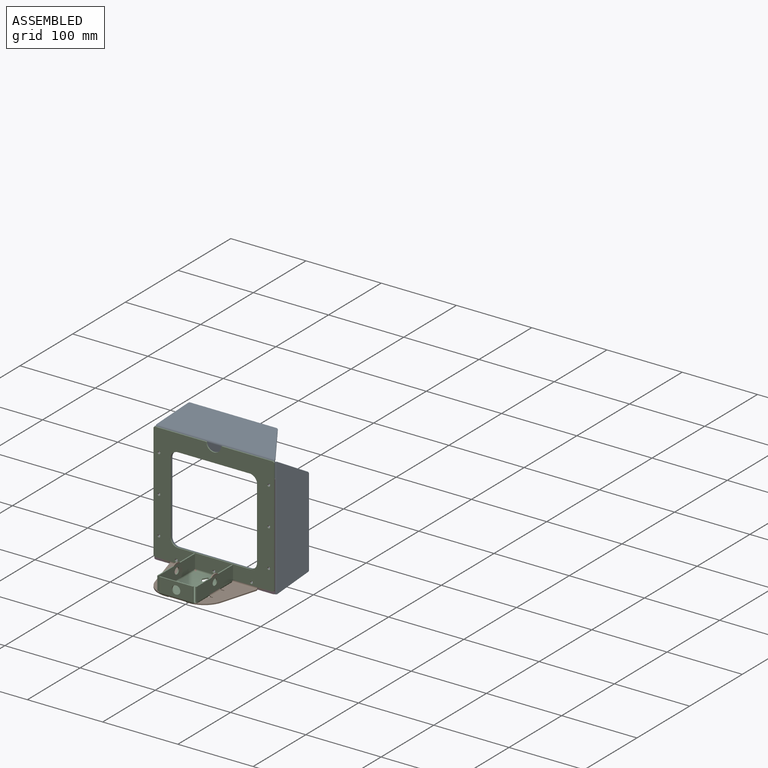
[diagram: assembled view]
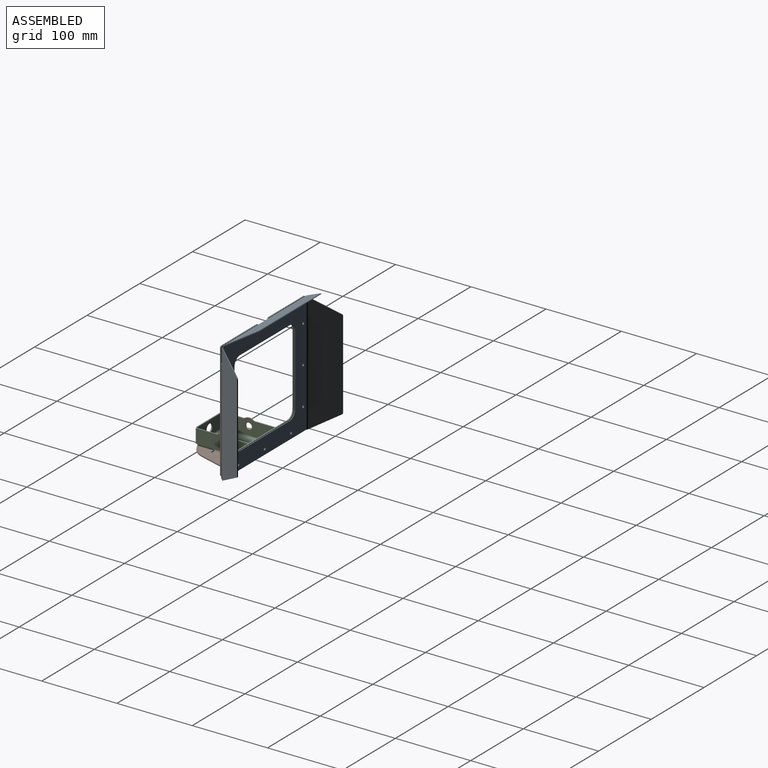
[diagram: assembled view, second angle]
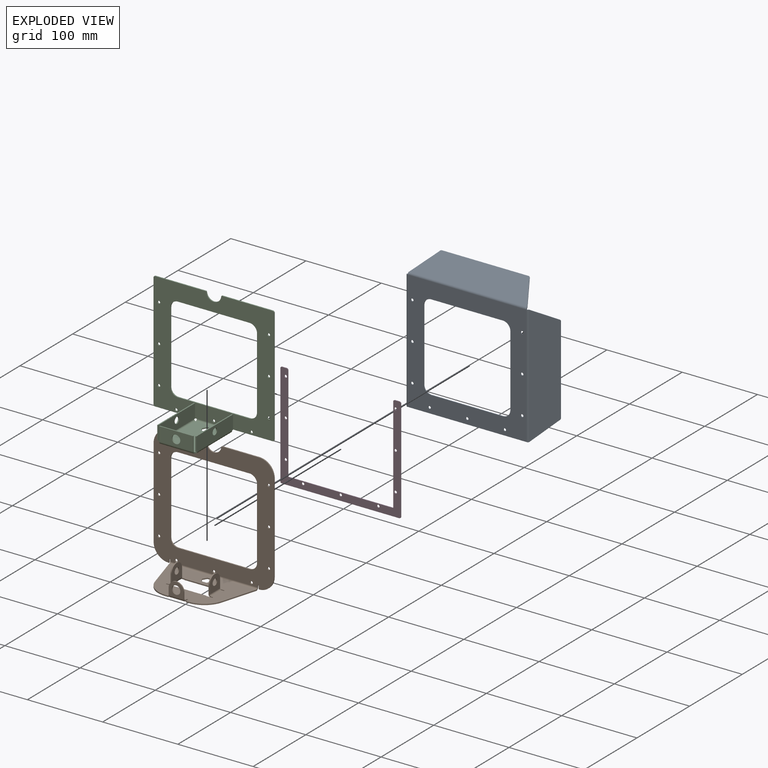
[diagram: exploded view]
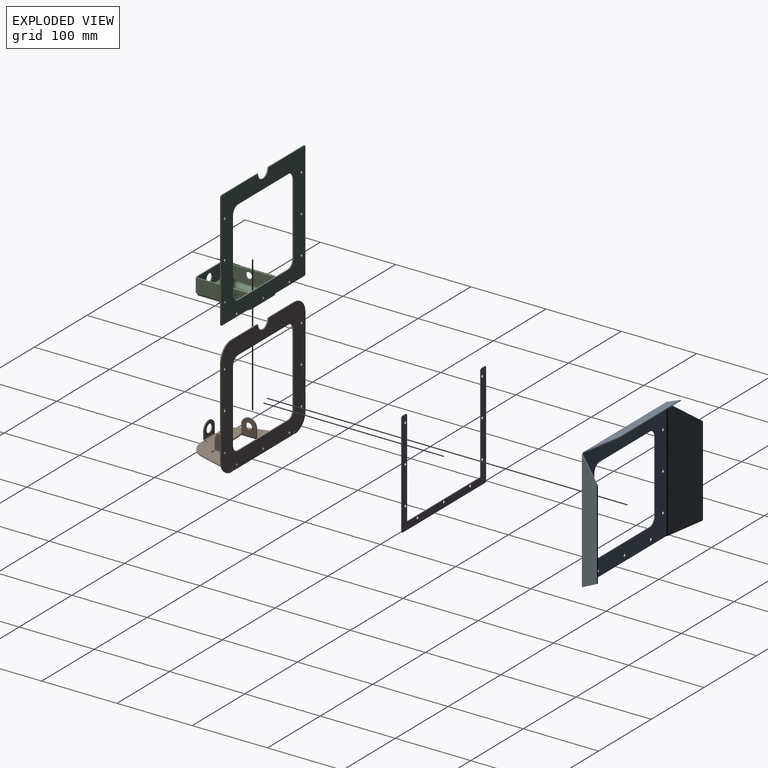
[diagram: exploded view, second angle]
ASSEMBLY  parts=3 mates=2
PART A: 53 faces, bbox 201.2x35.1x180.7 mm
  f0: plane 157.69x1mm, normal (0,0,-1), area 157.7mm2, adj f18,f19,f28,f38
  f1: plane 95x1mm, normal (1,0,0), area 95mm2, adj f2,f17,f18,f19
  f2: cylinder r=10mm len=10mm, axis (0,-1,0), area 15.7mm2, adj f1,f3,f18,f19
  f3: plane 95x1mm, normal (0,0,1), area 95mm2, adj f2,f4,f18,f19
  f4: cylinder r=10mm len=10mm, axis (0,-1,0), area 15.7mm2, adj f3,f5,f18,f19
  f5: plane 95x1mm, normal (-1,0,0), area 95mm2, adj f4,f6,f18,f19
  f6: cylinder r=10mm len=10mm, axis (0,-1,0), area 15.7mm2, adj f5,f7,f18,f19
  f7: plane 95x1mm, normal (0,0,-1), area 95mm2, adj f6,f17,f18,f19
  f8: cylinder r=1.75mm len=3.5mm, axis (0,-1,0), area 11mm2, adj f18,f19
  f9: cylinder r=1.75mm len=3.5mm, axis (0,-1,0), area 11mm2, adj f18,f19
  f10: cylinder r=1.75mm len=3.5mm, axis (0,-1,0), area 11mm2, adj f18,f19
  f11: cylinder r=1.75mm len=3.5mm, axis (0,-1,0), area 11mm2, adj f18,f19
  f12: cylinder r=1.75mm len=3.5mm, axis (0,-1,0), area 11mm2, adj f18,f19
  f13: cylinder r=1.75mm len=3.5mm, axis (0,-1,0), area 11mm2, adj f18,f19
  f14: cylinder r=1.75mm len=3.5mm, axis (0,-1,0), area 11mm2, adj f18,f19
  f15: cylinder r=1.75mm len=3.5mm, axis (0,-1,0), area 11mm2, adj f18,f19
  f16: cylinder r=1.75mm len=3.5mm, axis (0,-1,0), area 11mm2, adj f18,f19
  f17: cylinder r=10mm len=10mm, axis (0,-1,0), area 15.7mm2, adj f1,f7,f18,f19
  f18: plane 158.85x157.69mm, normal (0,1,0), area 11822.7mm2, adj f0,f1,f2,f3,f4,f5,f6,f7
  f19: plane 158.85x157.69mm, normal (0,-1,0), area 11822.7mm2, adj f0,f1,f2,f3,f4,f5,f6,f7
  f20: plane 32.71x19.46mm, normal (-0.23,0.4,-0.89), area 42mm2, adj f23,f24,f25,f28
  f21: plane 116.42x0.87mm, normal (-0.5,0.87,0), area 116.4mm2, adj f23,f24,f25,f26
  f22: plane 32.71x19.46mm, normal (-0.23,0.4,0.89), area 42mm2, adj f23,f24,f26,f27
  f23: plane 158.85x33.14mm, normal (0.87,0.5,0), area 5312.8mm2, adj f20,f21,f22,f25,f26,f30
  f24: plane 158.85x33.14mm, normal (-0.87,-0.5,0), area 5312.8mm2, adj f20,f21,f22,f25,f26,f29
  f25: cylinder r=2mm len=1.77mm, axis (-0.87,-0.5,0), area 2.2mm2, adj f20,f21,f23,f24
  f26: cylinder r=2mm len=1.77mm, axis (-0.87,-0.5,0), area 2.2mm2, adj f21,f22,f23,f24
  f27: plane 2.6x2mm, normal (0,0,1), area 2.6mm2, adj f22,f29,f30,f50
  f28: bspline ~2.6x2mm, area 2.6mm2, adj f0,f20,f29,f30
  f29: cylinder r=3mm len=158.85mm, axis (0,0,1), area 499mm2, adj f19,f24,f27,f28
  f30: cylinder r=2mm len=158.85mm, axis (0,0,1), area 332.7mm2, adj f18,f23,f27,f28
  f31: plane 116.42x0.87mm, normal (0.5,0.87,0), area 116.4mm2, adj f34,f35,f36,f37
  f32: plane 32.71x19.46mm, normal (0.23,0.4,-0.89), area 42mm2, adj f34,f35,f36,f38
  f33: plane 32.71x19.46mm, normal (0.23,0.4,0.89), area 42mm2, adj f34,f35,f37,f39
  f34: plane 158.85x33.14mm, normal (-0.87,0.5,0), area 5312.8mm2, adj f31,f32,f33,f36,f37,f41
  f35: plane 158.85x33.14mm, normal (0.87,-0.5,0), area 5312.8mm2, adj f31,f32,f33,f36,f37,f40
  f36: cylinder r=2mm len=1.77mm, axis (0.87,-0.5,0), area 2.2mm2, adj f31,f32,f34,f35
  f37: cylinder r=2mm len=1.77mm, axis (0.87,-0.5,0), area 2.2mm2, adj f31,f33,f34,f35
  f38: bspline ~2.6x2mm, area 2.6mm2, adj f0,f32,f40,f41
  f39: plane 2.6x2mm, normal (0,0,1), area 2.6mm2, adj f33,f40,f41,f49
  f40: cylinder r=3mm len=158.85mm, axis (0,0,-1), area 499mm2, adj f19,f35,f38,f39
  f41: cylinder r=2mm len=158.85mm, axis (0,0,-1), area 332.7mm2, adj f18,f34,f38,f39
  f42: plane 32.71x19.46mm, normal (-0.89,0.4,0.23), area 42mm2, adj f45,f46,f47,f50
  f43: plane 115.27x0.87mm, normal (0,0.87,0.5), area 115.3mm2, adj f45,f46,f47,f48
  f44: plane 32.71x19.46mm, normal (0.89,0.4,0.23), area 42mm2, adj f45,f46,f48,f49
  f45: plane 157.69x33.14mm, normal (0,0.5,-0.87), area 5268.6mm2, adj f42,f43,f44,f47,f48,f52
  f46: plane 157.69x33.14mm, normal (0,-0.5,0.87), area 5268.6mm2, adj f42,f43,f44,f47,f48,f51
  f47: cylinder r=2mm len=1.77mm, axis (0,-0.5,0.87), area 2.2mm2, adj f42,f43,f45,f46
  f48: cylinder r=2mm len=1.77mm, axis (0,-0.5,0.87), area 2.2mm2, adj f43,f44,f45,f46
  f49: plane 2.6x2mm, normal (1,0,0), area 2.6mm2, adj f39,f44,f51,f52
  f50: plane 2.6x2mm, normal (-1,0,0), area 2.6mm2, adj f27,f42,f51,f52
  f51: cylinder r=3mm len=157.69mm, axis (1,0,0), area 495.4mm2, adj f19,f46,f49,f50
  f52: cylinder r=2mm len=157.69mm, axis (1,0,0), area 330.3mm2, adj f18,f45,f49,f50
PART B: 110 faces, bbox 160x73x160 mm
  f0: plane 3.96x1.5mm, normal (0,-1,0), area 5.9mm2, adj f3,f4,f14,f37
  f1: plane 44.6x1.5mm, normal (0,1,0), area 66.9mm2, adj f3,f4,f26,f30
  f2: plane 44.6x1.5mm, normal (0,-1,0), area 66.9mm2, adj f3,f4,f19,f34
  f3: plane 116x68mm, normal (0,0,-1), area 4909.8mm2, adj f0,f1,f2,f5,f6,f7,f8,f9
  f4: plane 116x68mm, normal (0,0,1), area 4909.8mm2, adj f0,f1,f2,f5,f6,f7,f8,f9
  f5: plane 3.96x1.5mm, normal (0,-1,0), area 5.9mm2, adj f3,f4,f15,f21
  f6: plane 46.47x13.67mm, normal (-0.96,-0.28,0), area 72.6mm2, adj f3,f4,f15,f97
  f7: plane 5.6x3.23mm, normal (0.87,-0.5,0), area 9.7mm2, adj f3,f4,f8,f12
  f8: plane 5.6x3.23mm, normal (0.87,0.5,0), area 9.7mm2, adj f3,f4,f7,f9
  f9: plane 6.47x1.5mm, normal (0,1,0), area 9.7mm2, adj f3,f4,f8,f10
  f10: plane 5.6x3.23mm, normal (-0.87,0.5,0), area 9.7mm2, adj f3,f4,f9,f11
  f11: plane 5.6x3.23mm, normal (-0.87,-0.5,0), area 9.7mm2, adj f3,f4,f10,f12
  f12: plane 6.47x1.5mm, normal (0,-1,0), area 9.7mm2, adj f3,f4,f7,f11
  f13: plane 46.47x13.67mm, normal (0.96,-0.28,0), area 72.6mm2, adj f3,f4,f14,f96
  f14: cylinder r=30mm len=28.78mm, axis (0,0,1), area 57.8mm2, adj f0,f3,f4,f13
  f15: cylinder r=30mm len=28.78mm, axis (0,0,1), area 57.8mm2, adj f3,f4,f5,f6
  f16: plane 2.2x1.5mm, normal (0,1,0), area 3.3mm2, adj f3,f4,f17,f45
  f17: cylinder r=0.8mm len=1.59mm, axis (0,0,1), area 3.8mm2, adj f3,f4,f16,f18
  f18: plane 7.91x1.5mm, normal (0,-1,0), area 11.9mm2, adj f3,f4,f17,f19
  f19: plane 1.5x0.59mm, normal (-1,0,0), area 0.9mm2, adj f2,f3,f4,f18
  f20: plane 2.2x1.5mm, normal (-1,0,0), area 3.3mm2, adj f3,f4,f22,f107
  f21: plane 4.2x1.5mm, normal (1,0,0), area 6.3mm2, adj f3,f4,f5,f22
  f22: cylinder r=0.8mm len=1.59mm, axis (0,0,1), area 3.8mm2, adj f3,f4,f20,f21
  f23: plane 2.2x1.5mm, normal (0,-1,0), area 3.3mm2, adj f3,f4,f25,f44
  f24: plane 7.91x1.5mm, normal (0,1,0), area 11.9mm2, adj f3,f4,f25,f26
  f25: cylinder r=0.8mm len=1.59mm, axis (0,0,1), area 3.8mm2, adj f3,f4,f23,f24
  f26: plane 1.5x0.59mm, normal (-1,0,0), area 0.9mm2, adj f1,f3,f4,f24
  f27: plane 2.2x1.5mm, normal (0,-1,0), area 3.3mm2, adj f3,f4,f28,f55
  f28: cylinder r=0.8mm len=1.59mm, axis (0,0,1), area 3.8mm2, adj f3,f4,f27,f29
  f29: plane 7.91x1.5mm, normal (0,1,0), area 11.9mm2, adj f3,f4,f28,f30
  f30: plane 1.5x0.59mm, normal (1,0,0), area 0.9mm2, adj f1,f3,f4,f29
  f31: plane 7.91x1.5mm, normal (0,-1,0), area 11.9mm2, adj f3,f4,f32,f34
  f32: cylinder r=0.8mm len=1.59mm, axis (0,0,1), area 3.8mm2, adj f3,f4,f31,f33
  f33: plane 2.2x1.5mm, normal (0,1,0), area 3.3mm2, adj f3,f4,f32,f54
  f34: plane 1.5x0.59mm, normal (1,0,0), area 0.9mm2, adj f2,f3,f4,f31
  f35: plane 2.2x1.5mm, normal (1,0,0), area 3.3mm2, adj f3,f4,f36,f106
  f36: cylinder r=0.8mm len=1.59mm, axis (0,0,1), area 3.8mm2, adj f3,f4,f35,f37
  f37: plane 4.2x1.5mm, normal (-1,0,0), area 6.3mm2, adj f0,f3,f4,f36
  f38: plane 11x1.5mm, normal (0,-1,0), area 16.5mm2, adj f41,f42,f43,f44
  f39: cylinder r=4.25mm len=8.5mm, axis (1,0,0), area 40.1mm2, adj f41,f42
  f40: plane 11x1.5mm, normal (0,1,0), area 16.5mm2, adj f41,f42,f43,f45
  f41: plane 21x20mm, normal (1,0,0), area 320.3mm2, adj f38,f39,f40,f43,f46
  f42: plane 21x20mm, normal (-1,0,0), area 320.3mm2, adj f38,f39,f40,f43,f47
  f43: cylinder r=10mm len=20mm, axis (1,0,0), area 47.1mm2, adj f38,f40,f41,f42
  f44: plane 3.5x3.5mm, normal (0,-1,0), area 6.5mm2, adj f23,f38,f46,f47
  f45: plane 3.5x3.5mm, normal (0,1,0), area 6.5mm2, adj f16,f40,f46,f47
  f46: cylinder r=3.5mm len=20mm, axis (0,-1,0), area 110mm2, adj f3,f41,f44,f45
  f47: cylinder r=2mm len=20mm, axis (0,-1,0), area 62.8mm2, adj f4,f42,f44,f45
  f48: plane 11x1.5mm, normal (0,1,0), area 16.5mm2, adj f51,f52,f53,f54
  f49: cylinder r=4.25mm len=8.5mm, axis (-1,0,0), area 40.1mm2, adj f51,f52
  f50: plane 11x1.5mm, normal (0,-1,0), area 16.5mm2, adj f51,f52,f53,f55
  f51: plane 21x20mm, normal (-1,0,0), area 320.3mm2, adj f48,f49,f50,f53,f56
  f52: plane 21x20mm, normal (1,0,0), area 320.3mm2, adj f48,f49,f50,f53,f57
  f53: cylinder r=10mm len=20mm, axis (-1,0,0), area 47.1mm2, adj f48,f50,f51,f52
  f54: plane 3.5x3.5mm, normal (0,1,0), area 6.5mm2, adj f33,f48,f56,f57
  f55: plane 3.5x3.5mm, normal (0,-1,0), area 6.5mm2, adj f27,f50,f56,f57
  f56: cylinder r=3.5mm len=20mm, axis (0,1,0), area 110mm2, adj f3,f51,f54,f55
  f57: cylinder r=2mm len=20mm, axis (0,1,0), area 62.8mm2, adj f4,f52,f54,f55
  f58: plane 1.5x0.41mm, normal (0,0,-1), area 0.6mm2, adj f59,f60,f88,f95
  f59: plane 160x158.5mm, normal (0,1,0), area 11386mm2, adj f58,f61,f62,f63,f64,f65,f66,f67
  f60: plane 160x158.5mm, normal (0,-1,0), area 11386mm2, adj f58,f61,f62,f63,f64,f65,f66,f67
  f61: plane 95x1.5mm, normal (1,0,0), area 142.5mm2, adj f59,f60,f62,f83
  f62: cylinder r=10mm len=10mm, axis (0,1,0), area 23.6mm2, adj f59,f60,f61,f63
  f63: plane 95x1.5mm, normal (0,0,1), area 142.5mm2, adj f59,f60,f62,f64
  f64: cylinder r=10mm len=10mm, axis (0,1,0), area 23.6mm2, adj f59,f60,f63,f65
  f65: plane 95x1.5mm, normal (-1,0,0), area 142.5mm2, adj f59,f60,f64,f66
  f66: cylinder r=10mm len=10mm, axis (0,1,0), area 23.6mm2, adj f59,f60,f65,f67
  f67: plane 95x1.5mm, normal (0,0,-1), area 142.5mm2, adj f59,f60,f66,f83
  f68: plane 49.05x1.5mm, normal (0,0,1), area 73.6mm2, adj f59,f60,f86,f89
  f69: plane 118.5x1.5mm, normal (1,0,0), area 177.7mm2, adj f59,f60,f86,f88
  f70: plane 1.5x0.41mm, normal (0,0,-1), area 0.6mm2, adj f59,f60,f87,f92
  f71: plane 118.5x1.5mm, normal (-1,0,0), area 177.7mm2, adj f59,f60,f85,f87
  f72: plane 49.05x1.5mm, normal (0,0,1), area 73.6mm2, adj f59,f60,f84,f85
  f73: cylinder r=1.75mm len=3.5mm, axis (0,1,0), area 16.5mm2, adj f59,f60
  f74: cylinder r=1.75mm len=3.5mm, axis (0,1,0), area 16.5mm2, adj f59,f60
  f75: cylinder r=1.75mm len=3.5mm, axis (0,1,0), area 16.5mm2, adj f59,f60
  f76: cylinder r=1.75mm len=3.5mm, axis (0,1,0), area 16.5mm2, adj f59,f60
  f77: cylinder r=1.75mm len=3.5mm, axis (0,1,0), area 16.5mm2, adj f59,f60
  f78: cylinder r=1.75mm len=3.5mm, axis (0,1,0), area 16.5mm2, adj f59,f60
  f79: cylinder r=1.75mm len=3.5mm, axis (0,1,0), area 16.5mm2, adj f59,f60
  f80: cylinder r=1.75mm len=3.5mm, axis (0,1,0), area 16.5mm2, adj f59,f60
  f81: cylinder r=1.75mm len=3.5mm, axis (0,1,0), area 16.5mm2, adj f59,f60
  f82: cylinder r=10mm len=19.92mm, axis (0,1,0), area 44.4mm2, adj f59,f60,f84,f89
  f83: cylinder r=10mm len=10mm, axis (0,1,0), area 23.6mm2, adj f59,f60,f61,f67
  f84: cylinder r=1mm len=1.5mm, axis (0,1,0), area 2.2mm2, adj f59,f60,f72,f82
  f85: cylinder r=20mm len=20mm, axis (0,1,0), area 47.1mm2, adj f59,f60,f71,f72
  f86: cylinder r=20mm len=20mm, axis (0,1,0), area 47.1mm2, adj f59,f60,f68,f69
  f87: cylinder r=20mm len=20mm, axis (0,1,0), area 47.1mm2, adj f59,f60,f70,f71
  f88: cylinder r=20mm len=20mm, axis (0,1,0), area 47.1mm2, adj f58,f59,f60,f69
  f89: cylinder r=1mm len=1.5mm, axis (0,1,0), area 2.2mm2, adj f59,f60,f68,f82
  f90: cylinder r=0.8mm len=1.59mm, axis (0,-1,0), area 3.8mm2, adj f59,f60,f91,f92
  f91: plane 2.2x1.5mm, normal (-1,0,0), area 3.3mm2, adj f59,f60,f90,f97
  f92: plane 4.2x1.5mm, normal (1,0,0), area 6.3mm2, adj f59,f60,f70,f90
  f93: plane 2.2x1.5mm, normal (1,0,0), area 3.3mm2, adj f59,f60,f94,f96
  f94: cylinder r=0.8mm len=1.59mm, axis (0,-1,0), area 3.8mm2, adj f59,f60,f93,f95
  f95: plane 4.2x1.5mm, normal (-1,0,0), area 6.3mm2, adj f58,f59,f60,f94
  f96: plane 3.5x3.5mm, normal (1,0,0), area 6.5mm2, adj f13,f93,f98,f99
  f97: plane 3.5x3.5mm, normal (-1,0,0), area 6.5mm2, adj f6,f91,f98,f99
  f98: cylinder r=3.5mm len=116mm, axis (1,0,0), area 637.7mm2, adj f3,f59,f96,f97
  f99: cylinder r=2mm len=116mm, axis (1,0,0), area 364.4mm2, adj f4,f60,f96,f97
  f100: plane 8.5x1.5mm, normal (-1,0,0), area 12.7mm2, adj f103,f104,f105,f107
  f101: cylinder r=5.6mm len=11.2mm, axis (0,-1,0), area 52.8mm2, adj f103,f104
  f102: plane 8.5x1.5mm, normal (1,0,0), area 12.7mm2, adj f103,f104,f105,f106
  f103: plane 20x18.5mm, normal (0,-1,0), area 228.6mm2, adj f100,f101,f102,f105,f108
  f104: plane 20x18.5mm, normal (0,1,0), area 228.6mm2, adj f100,f101,f102,f105,f109
  f105: cylinder r=10mm len=20mm, axis (0,-1,0), area 47.1mm2, adj f100,f102,f103,f104
  f106: plane 3.5x3.5mm, normal (1,0,0), area 6.5mm2, adj f35,f102,f108,f109
  f107: plane 3.5x3.5mm, normal (-1,0,0), area 6.5mm2, adj f20,f100,f108,f109
  f108: cylinder r=3.5mm len=20mm, axis (1,0,0), area 110mm2, adj f3,f103,f106,f107
  f109: cylinder r=2mm len=20mm, axis (1,0,0), area 62.8mm2, adj f4,f104,f106,f107
PART C: 25 faces, bbox 160x1x140 mm
  f0: plane 136x1mm, normal (-1,0,0), area 136mm2, adj f17,f18,f19,f22
  f1: plane 6x1mm, normal (0,0,1), area 6mm2, adj f17,f18,f22,f24
  f2: plane 128x1mm, normal (1,0,0), area 128mm2, adj f3,f17,f18,f24
  f3: plane 140x1mm, normal (0,0,1), area 140mm2, adj f2,f4,f17,f18
  f4: plane 128x1mm, normal (-1,0,0), area 128mm2, adj f3,f17,f18,f23
  f5: plane 6x1mm, normal (0,0,1), area 6mm2, adj f17,f18,f21,f23
  f6: plane 136x1mm, normal (1,0,0), area 136mm2, adj f17,f18,f20,f21
  f7: cylinder r=1.75mm len=3.5mm, axis (0,-1,0), area 11mm2, adj f17,f18
  f8: cylinder r=1.75mm len=3.5mm, axis (0,-1,0), area 11mm2, adj f17,f18
  f9: cylinder r=1.75mm len=3.5mm, axis (0,-1,0), area 11mm2, adj f17,f18
  f10: cylinder r=1.75mm len=3.5mm, axis (0,-1,0), area 11mm2, adj f17,f18
  f11: cylinder r=1.75mm len=3.5mm, axis (0,-1,0), area 11mm2, adj f17,f18
  f12: cylinder r=1.75mm len=3.5mm, axis (0,-1,0), area 11mm2, adj f17,f18
  f13: cylinder r=1.75mm len=3.5mm, axis (0,-1,0), area 11mm2, adj f17,f18
  f14: cylinder r=1.75mm len=3.5mm, axis (0,-1,0), area 11mm2, adj f17,f18
  f15: cylinder r=1.75mm len=3.5mm, axis (0,-1,0), area 11mm2, adj f17,f18
  f16: plane 156x1mm, normal (0,0,-1), area 156mm2, adj f17,f18,f19,f20
  f17: plane 160x140mm, normal (0,1,0), area 4108.3mm2, adj f0,f1,f2,f3,f4,f5,f6,f7
  f18: plane 160x140mm, normal (0,-1,0), area 4108.3mm2, adj f0,f1,f2,f3,f4,f5,f6,f7
  f19: cylinder r=2mm len=2mm, axis (0,1,0), area 3.1mm2, adj f0,f16,f17,f18
  f20: cylinder r=2mm len=2mm, axis (0,-1,0), area 3.1mm2, adj f6,f16,f17,f18
  f21: cylinder r=2mm len=2mm, axis (0,1,0), area 3.1mm2, adj f5,f6,f17,f18
  f22: cylinder r=2mm len=2mm, axis (0,1,0), area 3.1mm2, adj f0,f1,f17,f18
  f23: cylinder r=2mm len=2mm, axis (0,-1,0), area 3.1mm2, adj f4,f5,f17,f18
  f24: cylinder r=2mm len=2mm, axis (0,1,0), area 3.1mm2, adj f1,f2,f17,f18
PLACE A t=(-8.98,70.11,-27.02)mm
PLACE B t=(-8.98,66.61,-27.02)mm
PLACE C t=(-8.98,69.11,-27.02)mm
MATE fastened C.f11 <-> A.f12  axis (0,-1,0) through (-8.98,69.11,-20.02)mm
MATE fastened B.f74 <-> C.f11  axis (0,1,0) through (-8.98,68.11,-20.02)mm
